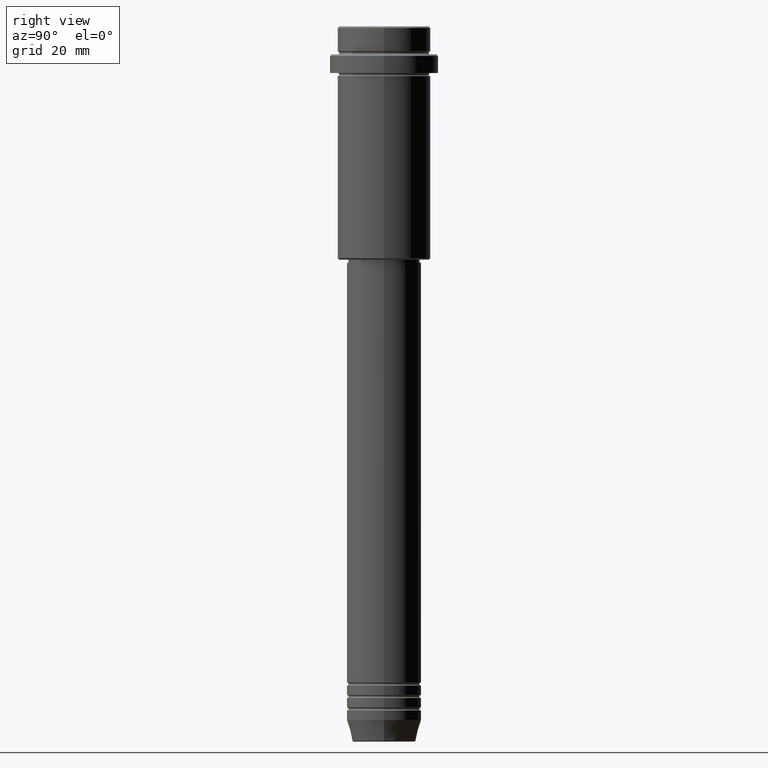
[diagram: clean part render]
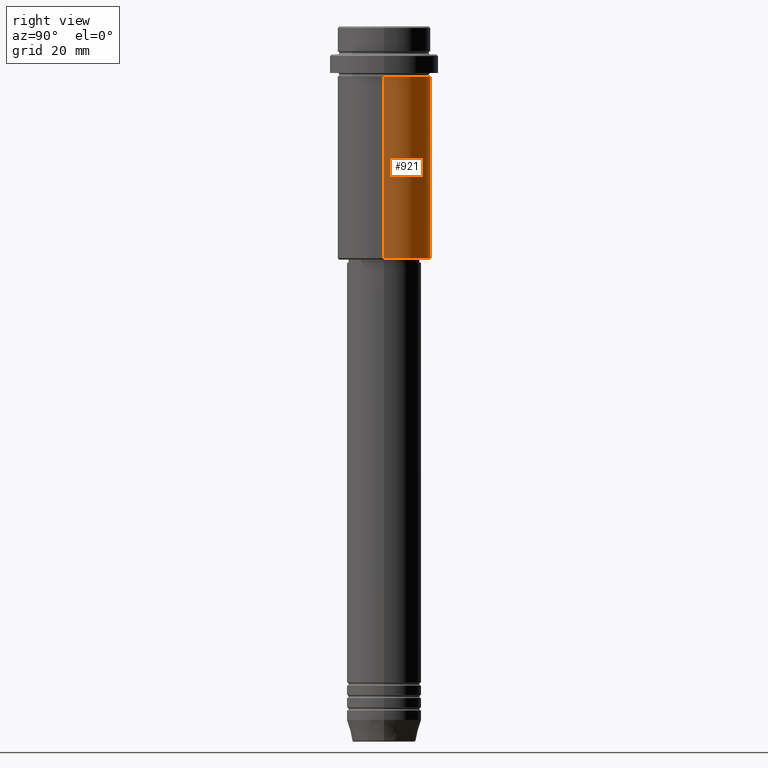
[diagram: same view with one face highlighted and labeled with its STEP entity id]
A machine part, right view. The second image highlights one B-rep face of the part: STEP entity #921.
In plain terms, the highlighted cylindrical surface (partial cylindrical patch) has radius 15 mm, axis along (-0, -0, 1).
Its self-contained STEP definition (entity closure, byte-faithful):
#3 = EDGE_CURVE ( 'NONE', #1380, #29, #60, .T. ) ;
#19 = EDGE_LOOP ( 'NONE', ( #1254, #965, #487, #1400 ) ) ;
#28 = DIRECTION ( 'NONE',  ( -0.000000000000000000, -0.000000000000000000, 1.000000000000000000 ) ) ;
#29 = VERTEX_POINT ( 'NONE', #399 ) ;
#60 = LINE ( 'NONE', #1041, #1290 ) ;
#61 = AXIS2_PLACEMENT_3D ( 'NONE', #569, #584, #1047 ) ;
#99 = LINE ( 'NONE', #838, #938 ) ;
#106 = AXIS2_PLACEMENT_3D ( 'NONE', #897, #28, #1003 ) ;
#117 = EDGE_CURVE ( 'NONE', #1260, #1383, #99, .T. ) ;
#168 = DIRECTION ( 'NONE',  ( 1.000000000000000000, 0.000000000000000000, 0.000000000000000000 ) ) ;
#301 = DIRECTION ( 'NONE',  ( -0.000000000000000000, -0.000000000000000000, 1.000000000000000000 ) ) ;
#324 = EDGE_CURVE ( 'NONE', #1380, #1260, #939, .T. ) ;
#399 = CARTESIAN_POINT ( 'NONE',  ( 15.00000000000000178, 0.000000000000000000, -16.00000000000000000 ) ) ;
#487 = ORIENTED_EDGE ( 'NONE', *, *, #1268, .F. ) ;
#497 = CYLINDRICAL_SURFACE ( 'NONE', #1124, 15.00000000000000000 ) ;
#569 = CARTESIAN_POINT ( 'NONE',  ( 0.000000000000000000, 0.000000000000000000, -16.00000000000000000 ) ) ;
#584 = DIRECTION ( 'NONE',  ( -0.000000000000000000, -0.000000000000000000, 1.000000000000000000 ) ) ;
#638 = CARTESIAN_POINT ( 'NONE',  ( -15.00000000000000355, 1.836970198721029983E-15, -16.00000000000000000 ) ) ;
#666 = CIRCLE ( 'NONE', #61, 15.00000000000000178 ) ;
#704 = CARTESIAN_POINT ( 'NONE',  ( 0.000000000000000000, 0.000000000000000000, 0.000000000000000000 ) ) ;
#721 = DIRECTION ( 'NONE',  ( -0.000000000000000000, -0.000000000000000000, 1.000000000000000000 ) ) ;
#743 = CARTESIAN_POINT ( 'NONE',  ( 15.00000000000000000, 0.000000000000000000, -74.49999999999994316 ) ) ;
#795 = FACE_OUTER_BOUND ( 'NONE', #19, .T. ) ;
#838 = CARTESIAN_POINT ( 'NONE',  ( -15.00000000000000000, 1.836970198721029589E-15, 0.000000000000000000 ) ) ;
#897 = CARTESIAN_POINT ( 'NONE',  ( 0.000000000000000000, 0.000000000000000000, -74.49999999999994316 ) ) ;
#921 = ADVANCED_FACE ( 'NONE', ( #795 ), #497, .T. ) ;
#938 = VECTOR ( 'NONE', #301, 1000.000000000000000 ) ;
#939 = CIRCLE ( 'NONE', #106, 15.00000000000000000 ) ;
#965 = ORIENTED_EDGE ( 'NONE', *, *, #117, .T. ) ;
#1003 = DIRECTION ( 'NONE',  ( -1.000000000000000000, 0.000000000000000000, 0.000000000000000000 ) ) ;
#1023 = CARTESIAN_POINT ( 'NONE',  ( -15.00000000000000000, 1.836970198721029589E-15, -74.49999999999994316 ) ) ;
#1041 = CARTESIAN_POINT ( 'NONE',  ( 15.00000000000000000, 0.000000000000000000, 0.000000000000000000 ) ) ;
#1047 = DIRECTION ( 'NONE',  ( 1.000000000000000000, 0.000000000000000000, 0.000000000000000000 ) ) ;
#1124 = AXIS2_PLACEMENT_3D ( 'NONE', #704, #1134, #168 ) ;
#1134 = DIRECTION ( 'NONE',  ( -0.000000000000000000, -0.000000000000000000, 1.000000000000000000 ) ) ;
#1254 = ORIENTED_EDGE ( 'NONE', *, *, #324, .T. ) ;
#1260 = VERTEX_POINT ( 'NONE', #1023 ) ;
#1268 = EDGE_CURVE ( 'NONE', #29, #1383, #666, .T. ) ;
#1290 = VECTOR ( 'NONE', #721, 1000.000000000000000 ) ;
#1380 = VERTEX_POINT ( 'NONE', #743 ) ;
#1383 = VERTEX_POINT ( 'NONE', #638 ) ;
#1400 = ORIENTED_EDGE ( 'NONE', *, *, #3, .F. ) ;